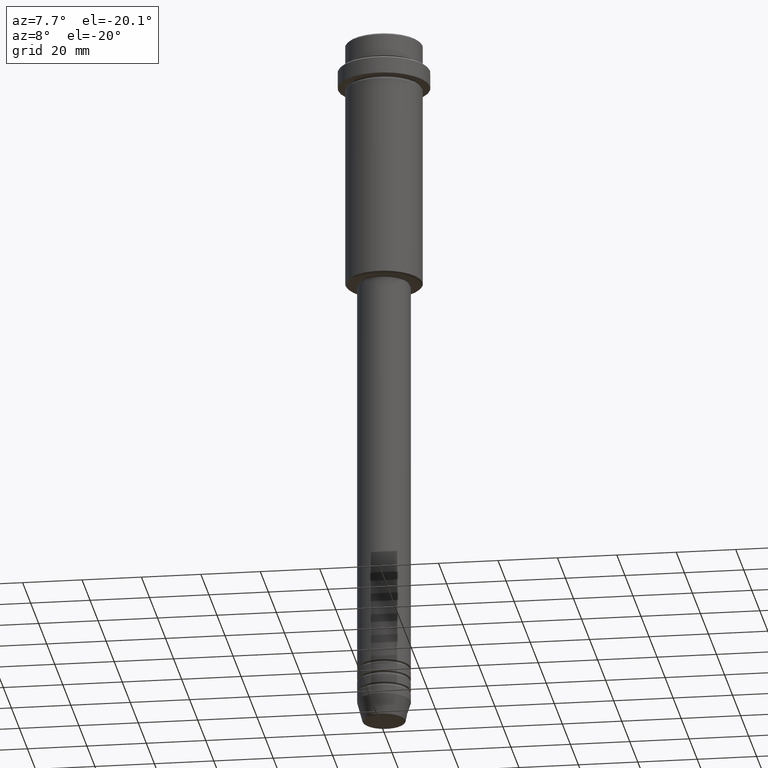
[diagram: clean part render]
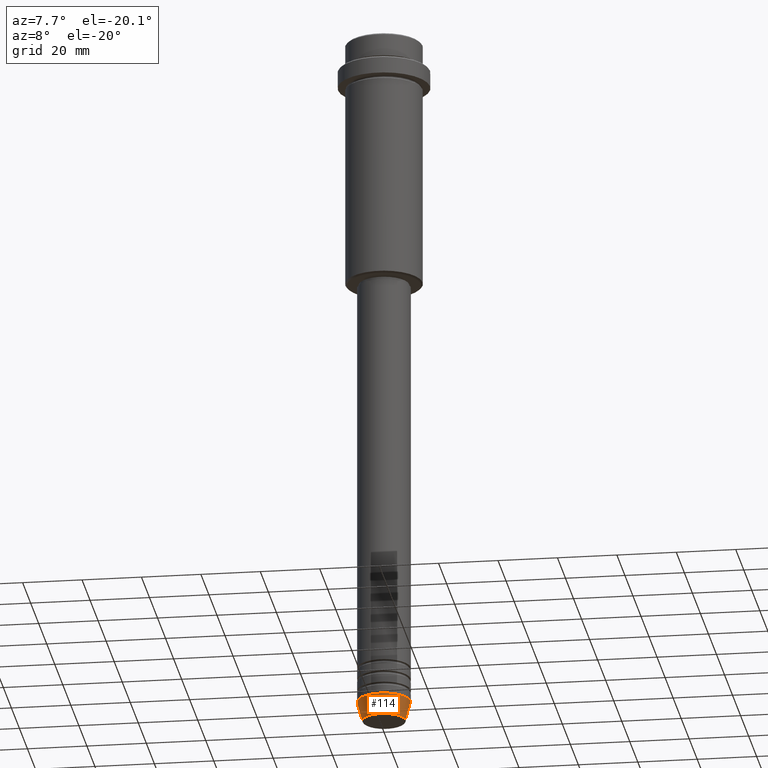
[diagram: same view with one face highlighted and labeled with its STEP entity id]
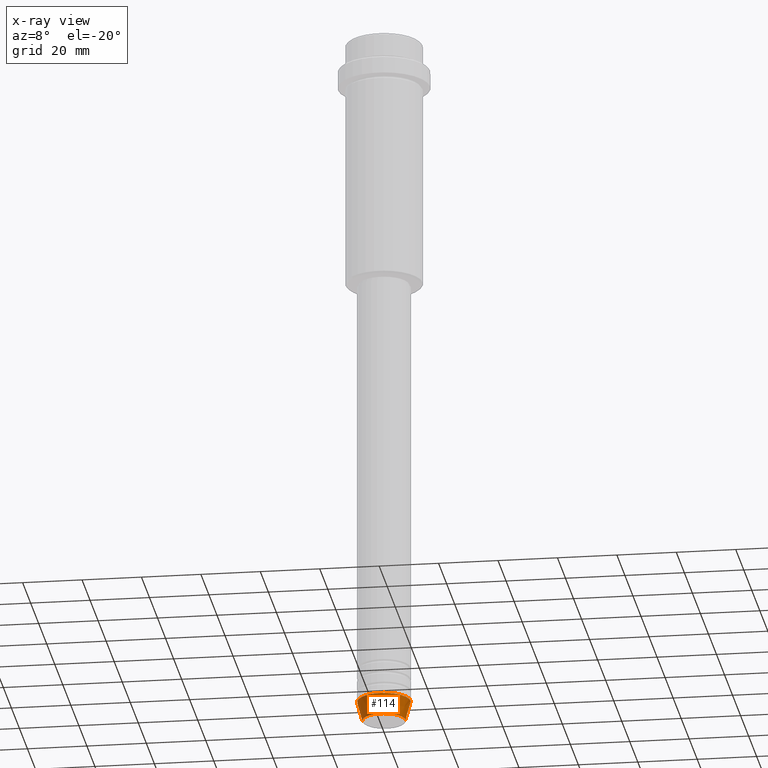
[diagram: x-ray of the same camera — body ghosted, the highlighted face saturated]
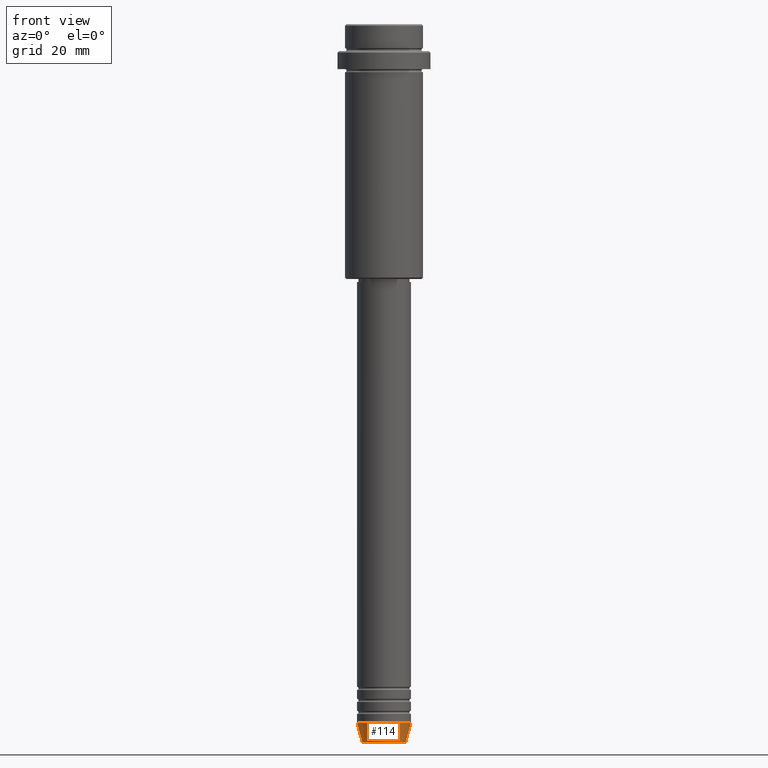
[diagram: same view with one face highlighted and labeled with its STEP entity id]
A machine part, auxiliary view. The second image highlights one B-rep face of the part: STEP entity #114.
The next image is the same camera in x-ray: the body ghosted, the highlighted face saturated — about 0% of this face is hidden behind the body in this view.
A second angle (front view) of the same face is appended — the face is thin or edge-on in the first view.
In plain terms, the highlighted conical surface has half-angle 15 deg.
Its self-contained STEP definition (entity closure, byte-faithful):
#43 = LINE ( 'NONE', #455, #152 ) ;
#83 = AXIS2_PLACEMENT_3D ( 'NONE', #1305, #1103, #649 ) ;
#107 = VERTEX_POINT ( 'NONE', #119 ) ;
#114 = ADVANCED_FACE ( 'NONE', ( #757 ), #651, .T. ) ;
#119 = CARTESIAN_POINT ( 'NONE',  ( 7.223655072137188604, 0.000000000000000000, -239.6294095225512706 ) ) ;
#141 = DIRECTION ( 'NONE',  ( 1.000000000000000000, 0.000000000000000000, 0.000000000000000000 ) ) ;
#152 = VECTOR ( 'NONE', #162, 1000.000000000000000 ) ;
#162 = DIRECTION ( 'NONE',  ( 0.2588190451025213501, 0.000000000000000000, 0.9659258262890680902 ) ) ;
#265 = AXIS2_PLACEMENT_3D ( 'NONE', #902, #695, #141 ) ;
#293 = ORIENTED_EDGE ( 'NONE', *, *, #1164, .F. ) ;
#323 = ORIENTED_EDGE ( 'NONE', *, *, #989, .T. ) ;
#432 = CARTESIAN_POINT ( 'NONE',  ( 0.000000000000000000, 0.000000000000000000, -232.9999999999999716 ) ) ;
#455 = CARTESIAN_POINT ( 'NONE',  ( 9.000000000000000000, 0.000000000000000000, -232.9999999999999716 ) ) ;
#521 = EDGE_LOOP ( 'NONE', ( #673, #323, #681, #293 ) ) ;
#604 = VERTEX_POINT ( 'NONE', #863 ) ;
#632 = CIRCLE ( 'NONE', #265, 9.000000000000000000 ) ;
#649 = DIRECTION ( 'NONE',  ( 1.000000000000000000, 0.000000000000000000, 0.000000000000000000 ) ) ;
#651 = CONICAL_SURFACE ( 'NONE', #1176, 9.000000000000000000, 0.2617993877991500740 ) ;
#673 = ORIENTED_EDGE ( 'NONE', *, *, #1236, .F. ) ;
#681 = ORIENTED_EDGE ( 'NONE', *, *, #697, .T. ) ;
#695 = DIRECTION ( 'NONE',  ( -0.000000000000000000, -0.000000000000000000, 1.000000000000000000 ) ) ;
#697 = EDGE_CURVE ( 'NONE', #107, #1385, #43, .T. ) ;
#711 = CARTESIAN_POINT ( 'NONE',  ( -9.000000000000000000, 1.102182119232617714E-15, -232.9999999999999716 ) ) ;
#757 = FACE_OUTER_BOUND ( 'NONE', #521, .T. ) ;
#806 = DIRECTION ( 'NONE',  ( -0.2588190451025213501, 3.169619151431772337E-17, 0.9659258262890680902 ) ) ;
#849 = CARTESIAN_POINT ( 'NONE',  ( -7.223655072137189492, 9.934123627281765110E-16, -239.6294095225512706 ) ) ;
#863 = CARTESIAN_POINT ( 'NONE',  ( -9.000000000000000000, 1.102182119232617714E-15, -232.9999999999999716 ) ) ;
#902 = CARTESIAN_POINT ( 'NONE',  ( 0.000000000000000000, 0.000000000000000000, -232.9999999999999716 ) ) ;
#989 = EDGE_CURVE ( 'NONE', #1260, #107, #1069, .T. ) ;
#1021 = VECTOR ( 'NONE', #806, 1000.000000000000000 ) ;
#1069 = CIRCLE ( 'NONE', #83, 7.223655072137188604 ) ;
#1083 = DIRECTION ( 'NONE',  ( -0.000000000000000000, -0.000000000000000000, 1.000000000000000000 ) ) ;
#1103 = DIRECTION ( 'NONE',  ( -0.000000000000000000, -0.000000000000000000, 1.000000000000000000 ) ) ;
#1164 = EDGE_CURVE ( 'NONE', #604, #1385, #632, .T. ) ;
#1176 = AXIS2_PLACEMENT_3D ( 'NONE', #432, #1083, #1184 ) ;
#1184 = DIRECTION ( 'NONE',  ( 1.000000000000000000, 0.000000000000000000, 0.000000000000000000 ) ) ;
#1236 = EDGE_CURVE ( 'NONE', #1260, #604, #1256, .T. ) ;
#1256 = LINE ( 'NONE', #711, #1021 ) ;
#1260 = VERTEX_POINT ( 'NONE', #849 ) ;
#1305 = CARTESIAN_POINT ( 'NONE',  ( 0.000000000000000000, 0.000000000000000000, -239.6294095225512706 ) ) ;
#1385 = VERTEX_POINT ( 'NONE', #1390 ) ;
#1390 = CARTESIAN_POINT ( 'NONE',  ( 9.000000000000000000, 0.000000000000000000, -232.9999999999999716 ) ) ;